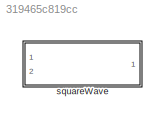
MODEL slx_319465c819cc
KIND library
CONFIG AbsTol = auto
CONFIG EnableMultiTasking = off
CONFIG FixedStep = auto
CONFIG MaxStep = auto
CONFIG MinStep = auto
CONFIG RelTol = 1e-3
CONFIG SampleTimeConstraint = Unconstrained
CONFIG Solver = VariableStepAuto
CONFIG SolverName = VariableStepAuto
CONFIG StartTime = 0.0
CONFIG StopTime = 10.0
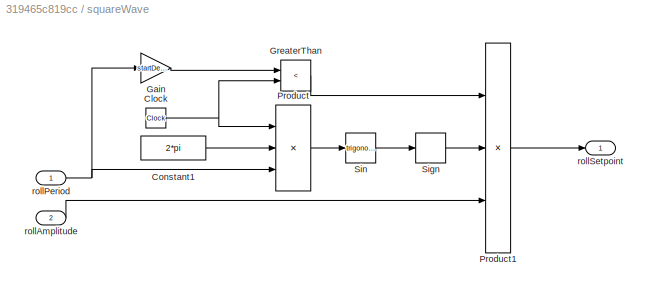
BLOCK [SubSystem] squareWave
  Ports = [2, 1]
  RequestExecContextInheritance = off
BLOCK [Clock] squareWave/Clock
BLOCK [Constant] squareWave/Constant1
  Value = 2*pi
BLOCK [Gain] squareWave/Gain
  Gain = startDelay
BLOCK [RelationalOperator] squareWave/GreaterThan
  InputSameDT = off
  Operator = <
  OutDataTypeStr = boolean
  Ports = [2, 1]
  RndMeth = Simplest
BLOCK [Product] squareWave/Product
  Inputs = **/
  Ports = [3, 1]
BLOCK [Product] squareWave/Product1
  Inputs = 3
  Ports = [3, 1]
BLOCK [Signum] squareWave/Sign
BLOCK [Trigonometry] squareWave/Sin
  Ports = [1, 1]
BLOCK [Inport] squareWave/rollAmplitude
  Port = 2
BLOCK [Inport] squareWave/rollPeriod
BLOCK [Outport] squareWave/rollSetpoint
NET squareWave/Clock:1 -> squareWave/GreaterThan:2, squareWave/Product:1
LINE squareWave/Constant1:1 -> squareWave/Product:2
LINE squareWave/Gain:1 -> squareWave/GreaterThan:1
LINE squareWave/GreaterThan:1 -> squareWave/Product1:1
LINE squareWave/Product1:1 -> squareWave/rollSetpoint:1
LINE squareWave/Product:1 -> squareWave/Sin:1
LINE squareWave/Sign:1 -> squareWave/Product1:2
LINE squareWave/Sin:1 -> squareWave/Sign:1
LINE squareWave/rollAmplitude:1 -> squareWave/Product1:3
NET squareWave/rollPeriod:1 -> squareWave/Gain:1, squareWave/Product:3
note: NET lines group one-source signal fan-out (src -> all destinations, sorted); 1:1 wires keep LINE
